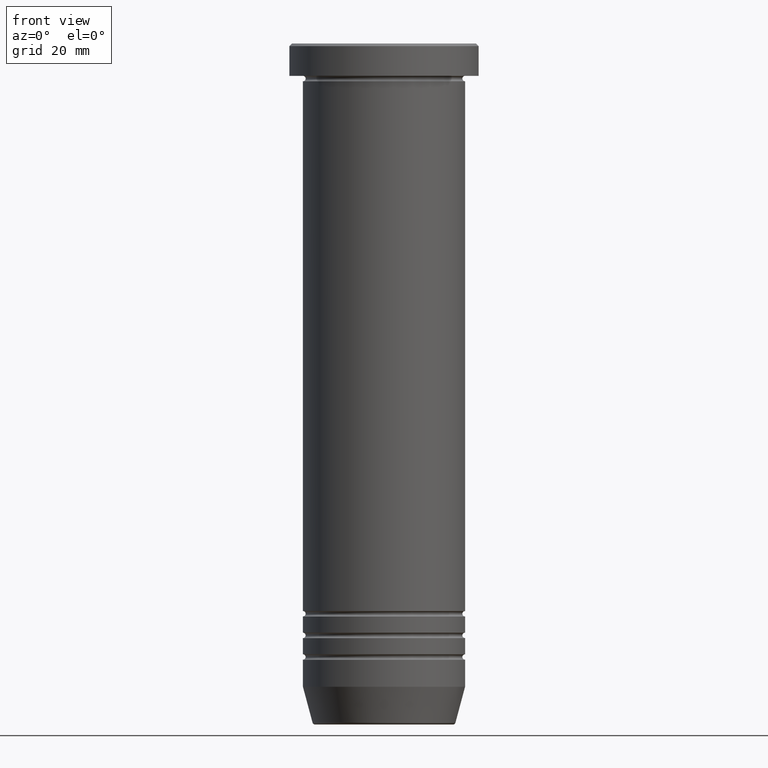
[diagram: clean part render]
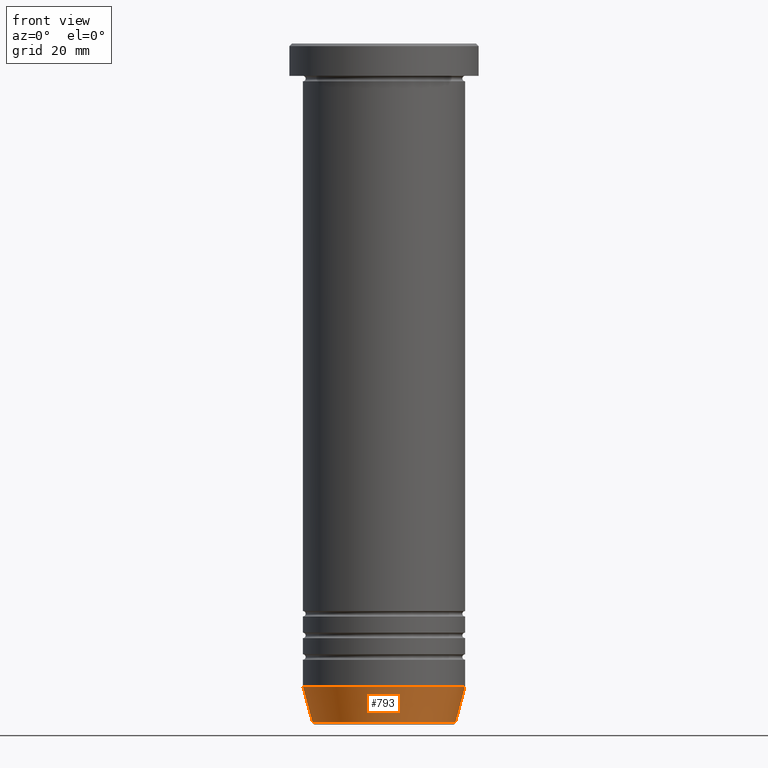
[diagram: same view with one face highlighted and labeled with its STEP entity id]
A machine part, front view. The second image highlights one B-rep face of the part: STEP entity #793.
In plain terms, the highlighted conical surface has half-angle 15 deg.
Its self-contained STEP definition (entity closure, byte-faithful):
#9 = CARTESIAN_POINT ( 'NONE',  ( 13.22365507213719305, 0.000000000000000000, -125.6294095225512564 ) ) ;
#40 = DIRECTION ( 'NONE',  ( 1.000000000000000000, 0.000000000000000000, 0.000000000000000000 ) ) ;
#61 = CARTESIAN_POINT ( 'NONE',  ( 0.000000000000000000, 0.000000000000000000, -126.0000000000000000 ) ) ;
#72 = CARTESIAN_POINT ( 'NONE',  ( 13.12435565298213724, 0.000000000000000000, -126.0000000000000000 ) ) ;
#125 = VERTEX_POINT ( 'NONE', #1006 ) ;
#137 = CIRCLE ( 'NONE', #778, 14.99999999999999822 ) ;
#152 = FACE_OUTER_BOUND ( 'NONE', #602, .T. ) ;
#156 = LINE ( 'NONE', #1123, #945 ) ;
#203 = EDGE_CURVE ( 'NONE', #836, #1147, #137, .T. ) ;
#274 = VECTOR ( 'NONE', #916, 1000.000000000000114 ) ;
#341 = DIRECTION ( 'NONE',  ( -0.000000000000000000, -0.000000000000000000, 1.000000000000000000 ) ) ;
#349 = DIRECTION ( 'NONE',  ( 1.000000000000000000, 0.000000000000000000, 0.000000000000000000 ) ) ;
#360 = EDGE_CURVE ( 'NONE', #125, #836, #156, .T. ) ;
#445 = CARTESIAN_POINT ( 'NONE',  ( 0.000000000000000000, 0.000000000000000000, -119.0000000000000000 ) ) ;
#458 = ORIENTED_EDGE ( 'NONE', *, *, #360, .F. ) ;
#560 = DIRECTION ( 'NONE',  ( -0.000000000000000000, -0.000000000000000000, 1.000000000000000000 ) ) ;
#602 = EDGE_LOOP ( 'NONE', ( #458, #1101, #909, #943 ) ) ;
#650 = CARTESIAN_POINT ( 'NONE',  ( -14.99999999999999822, 1.836970198721029589E-15, -119.0000000000000000 ) ) ;
#662 = DIRECTION ( 'NONE',  ( -0.2588190451025206840, 3.169619151431763092E-17, 0.9659258262890683122 ) ) ;
#744 = DIRECTION ( 'NONE',  ( -0.000000000000000000, -0.000000000000000000, 1.000000000000000000 ) ) ;
#773 = EDGE_CURVE ( 'NONE', #1110, #1147, #1103, .T. ) ;
#778 = AXIS2_PLACEMENT_3D ( 'NONE', #445, #341, #349 ) ;
#783 = EDGE_CURVE ( 'NONE', #125, #1110, #1141, .T. ) ;
#793 = ADVANCED_FACE ( 'NONE', ( #152 ), #1142, .T. ) ;
#836 = VERTEX_POINT ( 'NONE', #650 ) ;
#849 = DIRECTION ( 'NONE',  ( -1.000000000000000000, 0.000000000000000000, 0.000000000000000000 ) ) ;
#895 = CARTESIAN_POINT ( 'NONE',  ( 14.99999999999999822, 0.000000000000000000, -119.0000000000000000 ) ) ;
#909 = ORIENTED_EDGE ( 'NONE', *, *, #773, .T. ) ;
#916 = DIRECTION ( 'NONE',  ( 0.2588190451025206840, 0.000000000000000000, 0.9659258262890683122 ) ) ;
#927 = AXIS2_PLACEMENT_3D ( 'NONE', #61, #560, #40 ) ;
#943 = ORIENTED_EDGE ( 'NONE', *, *, #203, .F. ) ;
#945 = VECTOR ( 'NONE', #662, 1000.000000000000114 ) ;
#985 = AXIS2_PLACEMENT_3D ( 'NONE', #1003, #744, #849 ) ;
#1003 = CARTESIAN_POINT ( 'NONE',  ( 0.000000000000000000, 0.000000000000000000, -125.6294095225512564 ) ) ;
#1006 = CARTESIAN_POINT ( 'NONE',  ( -13.22365507213719305, 1.728200442216588780E-15, -125.6294095225512564 ) ) ;
#1101 = ORIENTED_EDGE ( 'NONE', *, *, #783, .T. ) ;
#1103 = LINE ( 'NONE', #72, #274 ) ;
#1110 = VERTEX_POINT ( 'NONE', #9 ) ;
#1123 = CARTESIAN_POINT ( 'NONE',  ( -13.12435565298213724, 1.607270014129604582E-15, -126.0000000000000000 ) ) ;
#1141 = CIRCLE ( 'NONE', #985, 13.22365507213719305 ) ;
#1142 = CONICAL_SURFACE ( 'NONE', #927, 13.12435565298213724, 0.2617993877991493523 ) ;
#1147 = VERTEX_POINT ( 'NONE', #895 ) ;